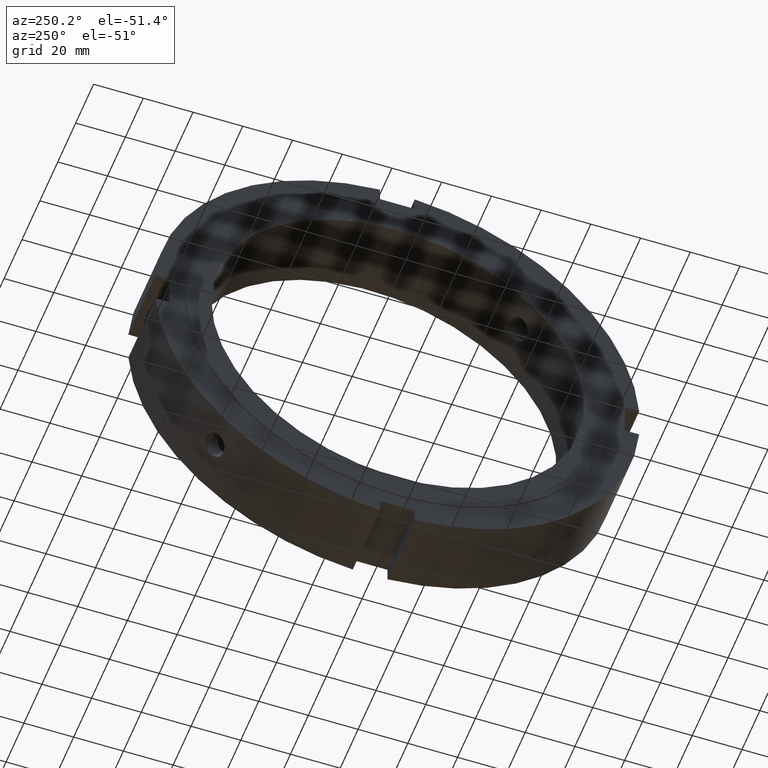
[diagram: clean part render]
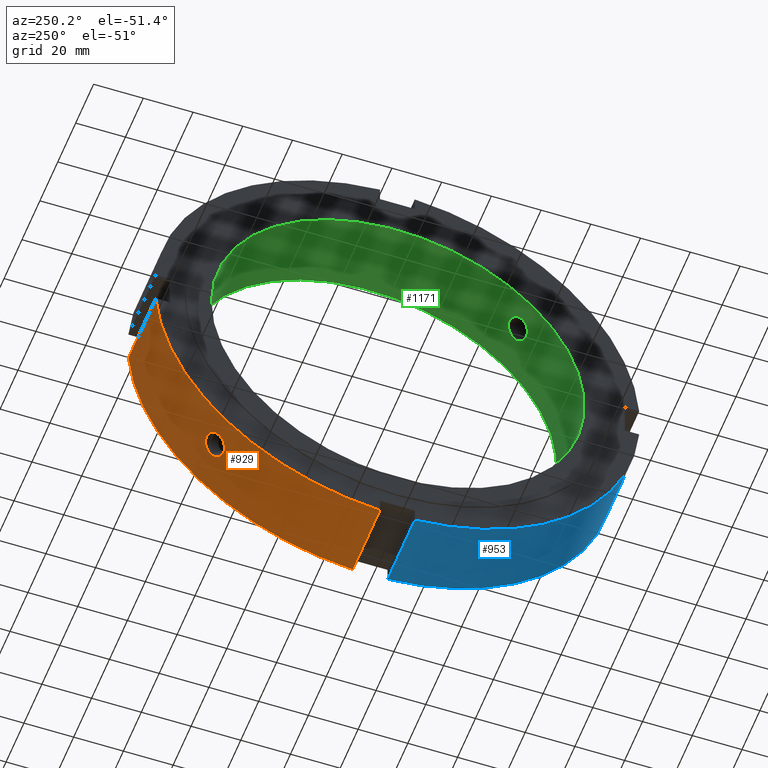
[diagram: same view with three faces highlighted in distinct colors, each labeled with its STEP entity id]
A machine part, auxiliary view with three faces highlighted in distinct colors.
Their STEP definitions:

[orange] entity #929 — the highlighted cylindrical surface (partial cylindrical patch) has radius 97.5 mm, axis along (1, 0, 0).
#439=CARTESIAN_POINT('',(12.999999999999982,65.465200545920041,-72.253425645310912));
#440=VERTEX_POINT('',#439);
#441=CARTESIAN_POINT('',(12.999999999999982,65.465200545920027,-72.253425645310898));
#442=CARTESIAN_POINT('',(13.602803282831957,65.465200545920027,-72.253425645310898));
#443=CARTESIAN_POINT('',(14.245719724837382,65.554765032491133,-72.172591081884946));
#444=CARTESIAN_POINT('',(15.428311701835145,65.916939750421705,-71.841959715854273));
#445=CARTESIAN_POINT('',(15.967995493537277,66.189319152910457,-71.591939672887776));
#446=CARTESIAN_POINT('',(16.820229521257389,66.812930403979905,-71.010310003639589));
#447=CARTESIAN_POINT('',(17.189621774663191,67.205718266233333,-70.639869673564718));
#448=CARTESIAN_POINT('',(17.679509710146782,68.057695312017486,-69.819408934717572));
#449=CARTESIAN_POINT('',(17.799999999999979,68.516664961298176,-69.369157370078582));
#450=CARTESIAN_POINT('',(17.799999999999983,69.369157370078582,-68.516664961298176));
#451=CARTESIAN_POINT('',(17.679509710146775,69.819408934717572,-68.057695312017486));
#452=CARTESIAN_POINT('',(17.189621774663177,70.639869673564718,-67.205718266233333));
#453=CARTESIAN_POINT('',(16.820229521257396,71.010310003639617,-66.812930403979919));
#454=CARTESIAN_POINT('',(15.967995493537277,71.591939672887804,-66.189319152910457));
#455=CARTESIAN_POINT('',(15.428311701835138,71.841959715854259,-65.916939750421719));
#456=CARTESIAN_POINT('',(14.245719724837381,72.172591081884917,-65.554765032491147));
#457=CARTESIAN_POINT('',(13.602803282831957,72.253425645310912,-65.465200545920027));
#458=CARTESIAN_POINT('',(12.397196717168008,72.253425645310912,-65.465200545920027));
#459=CARTESIAN_POINT('',(11.754280275162586,72.172591081884917,-65.554765032491147));
#460=CARTESIAN_POINT('',(10.571688298164828,71.841959715854259,-65.916939750421719));
#461=CARTESIAN_POINT('',(10.032004506462687,71.591939672887804,-66.189319152910457));
#462=CARTESIAN_POINT('',(9.179770478742569,71.010310003639617,-66.812930403979919));
#463=CARTESIAN_POINT('',(8.810378225336791,70.639869673564718,-67.205718266233333));
#464=CARTESIAN_POINT('',(8.320490289853192,69.819408934717572,-68.057695312017486));
#465=CARTESIAN_POINT('',(8.199999999999982,69.369157370078582,-68.516664961298176));
#466=CARTESIAN_POINT('',(8.199999999999983,68.516664961298176,-69.369157370078597));
#467=CARTESIAN_POINT('',(8.320490289853183,68.057695312017486,-69.819408934717572));
#468=CARTESIAN_POINT('',(8.810378225336773,67.205718266233333,-70.639869673564718));
#469=CARTESIAN_POINT('',(9.179770478742576,66.812930403979919,-71.010310003639589));
#470=CARTESIAN_POINT('',(10.032004506462687,66.189319152910471,-71.591939672887776));
#471=CARTESIAN_POINT('',(10.571688298164815,65.916939750421705,-71.841959715854273));
#472=CARTESIAN_POINT('',(11.754280275162577,65.554765032491133,-72.172591081884946));
#473=CARTESIAN_POINT('',(12.397196717168008,65.465200545920027,-72.253425645310898));
#474=CARTESIAN_POINT('',(12.999999999999986,65.465200545920027,-72.253425645310898));
#475=B_SPLINE_CURVE_WITH_KNOTS('',3,(#441,#442,#443,#444,#445,#446,#447,#448,#449,#450,#451,#452,#453,#454,#455,#456,#457,#458,#459,#460,#461,#462,#463,#464,#465,#466,#467,#468,#469,#470,#471,#472,#473,#474),.UNSPECIFIED.,.T.,.U.,(4,2,2,2,2,2,2,2,2,2,2,2,2,2,2,2,4),(0.0,0.180840984849593,0.361681969699185,0.542522918646788,0.723363867594391,0.904204816541995,1.085045765489599,1.265886750339191,1.446727735188783,1.627568720038375,1.808409704887967,1.989250653835571,2.170091602783176,2.350932551730778,2.53177350067838,2.712614485527973,2.893455470377566),.UNSPECIFIED.);
#476=EDGE_CURVE('',#440,#440,#475,.T.);
#573=CARTESIAN_POINT('',(0.499999999999972,6.999999999999977,-97.248393302923006));
#574=VERTEX_POINT('',#573);
#583=CARTESIAN_POINT('',(30.999999999999979,6.999999999999977,-97.248393302923006));
#584=VERTEX_POINT('',#583);
#585=CARTESIAN_POINT('',(30.999999999999979,6.999999999999977,-97.248393302923006));
#586=DIRECTION('',(-1.0,0.0,0.0));
#587=VECTOR('',#586,30.500000000000007);
#588=LINE('',#585,#587);
#589=EDGE_CURVE('',#584,#574,#588,.T.);
#894=CARTESIAN_POINT('',(15.749999999999975,0.0,0.0));
#895=DIRECTION('',(1.0,0.0,0.0));
#896=DIRECTION('',(0.0,1.0,0.0));
#897=AXIS2_PLACEMENT_3D('',#894,#895,#896);
#898=CYLINDRICAL_SURFACE('',#897,97.5);
#899=ORIENTED_EDGE('',*,*,#589,.T.);
#900=CARTESIAN_POINT('',(0.499999999999972,97.248393302923006,-6.999999999999995));
#901=VERTEX_POINT('',#900);
#902=CARTESIAN_POINT('',(0.499999999999972,0.0,0.0));
#903=DIRECTION('',(1.0,0.0,0.0));
#904=DIRECTION('',(0.0,1.0,0.0));
#905=AXIS2_PLACEMENT_3D('',#902,#903,#904);
#906=CIRCLE('',#905,97.5);
#907=EDGE_CURVE('',#574,#901,#906,.T.);
#908=ORIENTED_EDGE('',*,*,#907,.T.);
#909=CARTESIAN_POINT('',(30.999999999999979,97.248393302923006,-6.999999999999995));
#910=VERTEX_POINT('',#909);
#911=CARTESIAN_POINT('',(0.499999999999972,97.248393302923006,-6.999999999999995));
#912=DIRECTION('',(1.0,0.0,0.0));
#913=VECTOR('',#912,30.500000000000007);
#914=LINE('',#911,#913);
#915=EDGE_CURVE('',#901,#910,#914,.T.);
#916=ORIENTED_EDGE('',*,*,#915,.T.);
#917=CARTESIAN_POINT('',(30.999999999999979,0.0,0.0));
#918=DIRECTION('',(1.0,0.0,0.0));
#919=DIRECTION('',(0.0,1.0,0.0));
#920=AXIS2_PLACEMENT_3D('',#917,#918,#919);
#921=CIRCLE('',#920,97.5);
#922=EDGE_CURVE('',#584,#910,#921,.T.);
#923=ORIENTED_EDGE('',*,*,#922,.F.);
#924=EDGE_LOOP('',(#899,#908,#916,#923));
#925=FACE_OUTER_BOUND('',#924,.T.);
#926=ORIENTED_EDGE('',*,*,#476,.T.);
#927=EDGE_LOOP('',(#926));
#928=FACE_BOUND('',#927,.T.);
#929=ADVANCED_FACE('',(#925,#928),#898,.T.);

[blue] entity #953 — the highlighted cylindrical surface (partial cylindrical patch) has radius 97.5 mm, axis along (1, 0, 0).
#535=CARTESIAN_POINT('',(0.499999999999972,-7.000000000000012,-97.248393302923006));
#536=VERTEX_POINT('',#535);
#551=CARTESIAN_POINT('',(30.999999999999979,-7.000000000000012,-97.248393302923006));
#552=VERTEX_POINT('',#551);
#559=CARTESIAN_POINT('',(0.499999999999972,-7.000000000000012,-97.248393302923006));
#560=DIRECTION('',(1.0,0.0,0.0));
#561=VECTOR('',#560,30.500000000000007);
#562=LINE('',#559,#561);
#563=EDGE_CURVE('',#536,#552,#562,.T.);
#675=CARTESIAN_POINT('',(0.499999999999972,-97.248393302923006,-6.999999999999984));
#676=VERTEX_POINT('',#675);
#685=CARTESIAN_POINT('',(30.999999999999979,-97.248393302923006,-6.999999999999984));
#686=VERTEX_POINT('',#685);
#687=CARTESIAN_POINT('',(30.999999999999979,-97.248393302923006,-6.999999999999984));
#688=DIRECTION('',(-1.0,0.0,0.0));
#689=VECTOR('',#688,30.500000000000007);
#690=LINE('',#687,#689);
#691=EDGE_CURVE('',#686,#676,#690,.T.);
#930=CARTESIAN_POINT('',(15.749999999999975,0.0,0.0));
#931=DIRECTION('',(1.0,0.0,0.0));
#932=DIRECTION('',(0.0,1.0,0.0));
#933=AXIS2_PLACEMENT_3D('',#930,#931,#932);
#934=CYLINDRICAL_SURFACE('',#933,97.5);
#935=ORIENTED_EDGE('',*,*,#563,.T.);
#936=CARTESIAN_POINT('',(30.999999999999979,0.0,0.0));
#937=DIRECTION('',(1.0,0.0,0.0));
#938=DIRECTION('',(0.0,1.0,0.0));
#939=AXIS2_PLACEMENT_3D('',#936,#937,#938);
#940=CIRCLE('',#939,97.5);
#941=EDGE_CURVE('',#686,#552,#940,.T.);
#942=ORIENTED_EDGE('',*,*,#941,.F.);
#943=ORIENTED_EDGE('',*,*,#691,.T.);
#944=CARTESIAN_POINT('',(0.499999999999972,0.0,0.0));
#945=DIRECTION('',(1.0,0.0,0.0));
#946=DIRECTION('',(0.0,1.0,0.0));
#947=AXIS2_PLACEMENT_3D('',#944,#945,#946);
#948=CIRCLE('',#947,97.5);
#949=EDGE_CURVE('',#676,#536,#948,.T.);
#950=ORIENTED_EDGE('',*,*,#949,.T.);
#951=EDGE_LOOP('',(#935,#942,#943,#950));
#952=FACE_OUTER_BOUND('',#951,.T.);
#953=ADVANCED_FACE('',(#952),#934,.T.);

[green] entity #1171 — the highlighted cylindrical surface (bore or boss wall) has radius 75 mm, axis along (1, 0, 0).
#256=CARTESIAN_POINT('',(12.999999999999982,-56.318398090456384,49.530172991065541));
#257=VERTEX_POINT('',#256);
#258=CARTESIAN_POINT('',(12.999999999999982,-56.318398090456377,49.530172991065548));
#259=CARTESIAN_POINT('',(13.602875646212755,-56.318398090456377,49.530172991065548));
#260=CARTESIAN_POINT('',(14.24582316905229,-56.238859353020409,49.621073264161765));
#261=CARTESIAN_POINT('',(15.428395167230297,-55.912960074561127,49.988009650415577));
#262=CARTESIAN_POINT('',(15.968033636095175,-55.666309735773929,50.263743157519258));
#263=CARTESIAN_POINT('',(16.820191221324116,-55.091040337809893,50.893606573865085));
#264=CARTESIAN_POINT('',(17.189572566133677,-54.723986820463104,51.289717251236134));
#265=CARTESIAN_POINT('',(17.679481511941766,-53.908270702700271,52.146410989437648));
#266=CARTESIAN_POINT('',(17.799999999999979,-53.459305804544698,52.60671137343742));
#267=CARTESIAN_POINT('',(17.799999999999983,-52.60671137343742,53.459305804544698));
#268=CARTESIAN_POINT('',(17.67948151194177,-52.146410989437655,53.90827070270025));
#269=CARTESIAN_POINT('',(17.189572566133688,-51.289717251236141,54.723986820463082));
#270=CARTESIAN_POINT('',(16.820191221324112,-50.893606573865128,55.091040337809872));
#271=CARTESIAN_POINT('',(15.96803363609518,-50.263743157519286,55.666309735773901));
#272=CARTESIAN_POINT('',(15.428395167230317,-49.988009650415592,55.912960074561127));
#273=CARTESIAN_POINT('',(14.245823169052301,-49.621073264161751,56.238859353020423));
#274=CARTESIAN_POINT('',(13.602875646212759,-49.530172991065513,56.318398090456405));
#275=CARTESIAN_POINT('',(12.397124353787206,-49.530172991065513,56.318398090456405));
#276=CARTESIAN_POINT('',(11.754176830947664,-49.621073264161751,56.238859353020423));
#277=CARTESIAN_POINT('',(10.571604832769648,-49.988009650415592,55.912960074561127));
#278=CARTESIAN_POINT('',(10.031966363904788,-50.263743157519286,55.666309735773901));
#279=CARTESIAN_POINT('',(9.179808778675856,-50.893606573865128,55.091040337809872));
#280=CARTESIAN_POINT('',(8.810427433866279,-51.289717251236141,54.723986820463082));
#281=CARTESIAN_POINT('',(8.320518488058196,-52.146410989437655,53.90827070270025));
#282=CARTESIAN_POINT('',(8.199999999999982,-52.60671137343742,53.459305804544698));
#283=CARTESIAN_POINT('',(8.199999999999985,-53.459305804544698,52.606711373437435));
#284=CARTESIAN_POINT('',(8.3205184880582,-53.90827070270025,52.146410989437669));
#285=CARTESIAN_POINT('',(8.810427433866286,-54.723986820463082,51.289717251236162));
#286=CARTESIAN_POINT('',(9.179808778675856,-55.091040337809858,50.893606573865128));
#287=CARTESIAN_POINT('',(10.03196636390479,-55.666309735773893,50.263743157519286));
#288=CARTESIAN_POINT('',(10.571604832769662,-55.912960074561127,49.988009650415599));
#289=CARTESIAN_POINT('',(11.754176830947674,-56.238859353020409,49.621073264161772));
#290=CARTESIAN_POINT('',(12.397124353787209,-56.318398090456384,49.530172991065548));
#291=CARTESIAN_POINT('',(12.999999999999982,-56.318398090456384,49.530172991065548));
#292=B_SPLINE_CURVE_WITH_KNOTS('',3,(#258,#259,#260,#261,#262,#263,#264,#265,#266,#267,#268,#269,#270,#271,#272,#273,#274,#275,#276,#277,#278,#279,#280,#281,#282,#283,#284,#285,#286,#287,#288,#289,#290,#291),.UNSPECIFIED.,.T.,.U.,(4,2,2,2,2,2,2,2,2,2,2,2,2,2,2,2,4),(0.0,0.180862693863831,0.361725387727663,0.542587978879016,0.72345057003037,0.90431316118172,1.085175752333071,1.266038446196904,1.446901140060737,1.62776383392457,1.808626527788402,1.989489118939753,2.170351710091104,2.351214301242455,2.532076892393806,2.712939586257638,2.893802280121471),.UNSPECIFIED.);
#293=EDGE_CURVE('',#257,#257,#292,.T.);
#486=CARTESIAN_POINT('',(12.999999999999982,49.530172991065527,-56.318398090456398));
#487=VERTEX_POINT('',#486);
#488=CARTESIAN_POINT('',(12.999999999999986,49.53017299106552,-56.318398090456398));
#489=CARTESIAN_POINT('',(12.397124353787207,49.53017299106552,-56.318398090456398));
#490=CARTESIAN_POINT('',(11.754176830947664,49.621073264161751,-56.238859353020423));
#491=CARTESIAN_POINT('',(10.571604832769648,49.988009650415592,-55.912960074561127));
#492=CARTESIAN_POINT('',(10.031966363904788,50.263743157519286,-55.666309735773901));
#493=CARTESIAN_POINT('',(9.179808778675856,50.893606573865128,-55.091040337809872));
#494=CARTESIAN_POINT('',(8.810427433866279,51.289717251236141,-54.723986820463082));
#495=CARTESIAN_POINT('',(8.320518488058196,52.146410989437655,-53.90827070270025));
#496=CARTESIAN_POINT('',(8.199999999999982,52.60671137343742,-53.459305804544698));
#497=CARTESIAN_POINT('',(8.199999999999985,53.459305804544698,-52.606711373437435));
#498=CARTESIAN_POINT('',(8.3205184880582,53.90827070270025,-52.146410989437669));
#499=CARTESIAN_POINT('',(8.810427433866286,54.723986820463082,-51.289717251236162));
#500=CARTESIAN_POINT('',(9.179808778675856,55.091040337809858,-50.893606573865128));
#501=CARTESIAN_POINT('',(10.03196636390479,55.666309735773893,-50.263743157519286));
#502=CARTESIAN_POINT('',(10.571604832769655,55.912960074561127,-49.988009650415599));
#503=CARTESIAN_POINT('',(11.754176830947669,56.238859353020409,-49.621073264161772));
#504=CARTESIAN_POINT('',(12.397124353787207,56.318398090456398,-49.53017299106552));
#505=CARTESIAN_POINT('',(13.602875646212755,56.318398090456398,-49.53017299106552));
#506=CARTESIAN_POINT('',(14.24582316905229,56.238859353020409,-49.621073264161765));
#507=CARTESIAN_POINT('',(15.428395167230295,55.912960074561127,-49.988009650415577));
#508=CARTESIAN_POINT('',(15.968033636095171,55.666309735773929,-50.263743157519258));
#509=CARTESIAN_POINT('',(16.820191221324112,55.091040337809893,-50.893606573865085));
#510=CARTESIAN_POINT('',(17.189572566133673,54.723986820463104,-51.289717251236134));
#511=CARTESIAN_POINT('',(17.679481511941763,53.908270702700264,-52.146410989437648));
#512=CARTESIAN_POINT('',(17.799999999999979,53.459305804544698,-52.60671137343742));
#513=CARTESIAN_POINT('',(17.799999999999983,52.60671137343742,-53.459305804544698));
#514=CARTESIAN_POINT('',(17.67948151194177,52.146410989437655,-53.90827070270025));
#515=CARTESIAN_POINT('',(17.189572566133688,51.289717251236141,-54.723986820463082));
#516=CARTESIAN_POINT('',(16.820191221324112,50.893606573865128,-55.091040337809872));
#517=CARTESIAN_POINT('',(15.96803363609518,50.263743157519286,-55.666309735773901));
#518=CARTESIAN_POINT('',(15.428395167230329,49.988009650415577,-55.912960074561127));
#519=CARTESIAN_POINT('',(14.24582316905231,49.621073264161744,-56.238859353020423));
#520=CARTESIAN_POINT('',(13.602875646212757,49.530172991065527,-56.318398090456398));
#521=CARTESIAN_POINT('',(12.99999999999998,49.530172991065527,-56.318398090456398));
#522=B_SPLINE_CURVE_WITH_KNOTS('',3,(#488,#489,#490,#491,#492,#493,#494,#495,#496,#497,#498,#499,#500,#501,#502,#503,#504,#505,#506,#507,#508,#509,#510,#511,#512,#513,#514,#515,#516,#517,#518,#519,#520,#521),.UNSPECIFIED.,.T.,.U.,(4,2,2,2,2,2,2,2,2,2,2,2,2,2,2,2,4),(0.0,0.180862693863833,0.361725387727665,0.542587978879016,0.723450570030367,0.904313161181718,1.085175752333069,1.266038446196902,1.446901140060734,1.627763833924566,1.808626527788397,1.98948911893975,2.170351710091103,2.351214301242454,2.532076892393805,2.712939586257638,2.89380228012147),.UNSPECIFIED.);
#523=EDGE_CURVE('',#487,#487,#522,.T.);
#1002=CARTESIAN_POINT('',(30.999999999999982,75.0,0.0));
#1003=VERTEX_POINT('',#1002);
#1004=CARTESIAN_POINT('',(30.999999999999982,0.0,0.0));
#1005=DIRECTION('',(1.0,0.0,0.0));
#1006=DIRECTION('',(0.0,1.0,0.0));
#1007=AXIS2_PLACEMENT_3D('',#1004,#1005,#1006);
#1008=CIRCLE('',#1007,75.0);
#1009=EDGE_CURVE('',#1003,#1003,#1008,.T.);
#1095=CARTESIAN_POINT('',(-2.206848E-014,75.0,0.0));
#1096=VERTEX_POINT('',#1095);
#1097=CARTESIAN_POINT('',(-2.207002E-014,0.0,0.0));
#1098=DIRECTION('',(1.0,0.0,0.0));
#1099=DIRECTION('',(0.0,1.0,0.0));
#1100=AXIS2_PLACEMENT_3D('',#1097,#1098,#1099);
#1101=CIRCLE('',#1100,75.0);
#1102=EDGE_CURVE('',#1096,#1096,#1101,.T.);
#1154=CARTESIAN_POINT('',(15.49999999999998,0.0,0.0));
#1155=DIRECTION('',(1.0,0.0,0.0));
#1156=DIRECTION('',(0.0,1.0,0.0));
#1157=AXIS2_PLACEMENT_3D('',#1154,#1155,#1156);
#1158=CYLINDRICAL_SURFACE('',#1157,75.0);
#1159=ORIENTED_EDGE('',*,*,#1102,.F.);
#1160=EDGE_LOOP('',(#1159));
#1161=FACE_OUTER_BOUND('',#1160,.T.);
#1162=ORIENTED_EDGE('',*,*,#293,.T.);
#1163=EDGE_LOOP('',(#1162));
#1164=FACE_BOUND('',#1163,.T.);
#1165=ORIENTED_EDGE('',*,*,#523,.T.);
#1166=EDGE_LOOP('',(#1165));
#1167=FACE_BOUND('',#1166,.T.);
#1168=ORIENTED_EDGE('',*,*,#1009,.T.);
#1169=EDGE_LOOP('',(#1168));
#1170=FACE_BOUND('',#1169,.T.);
#1171=ADVANCED_FACE('',(#1161,#1164,#1167,#1170),#1158,.F.);